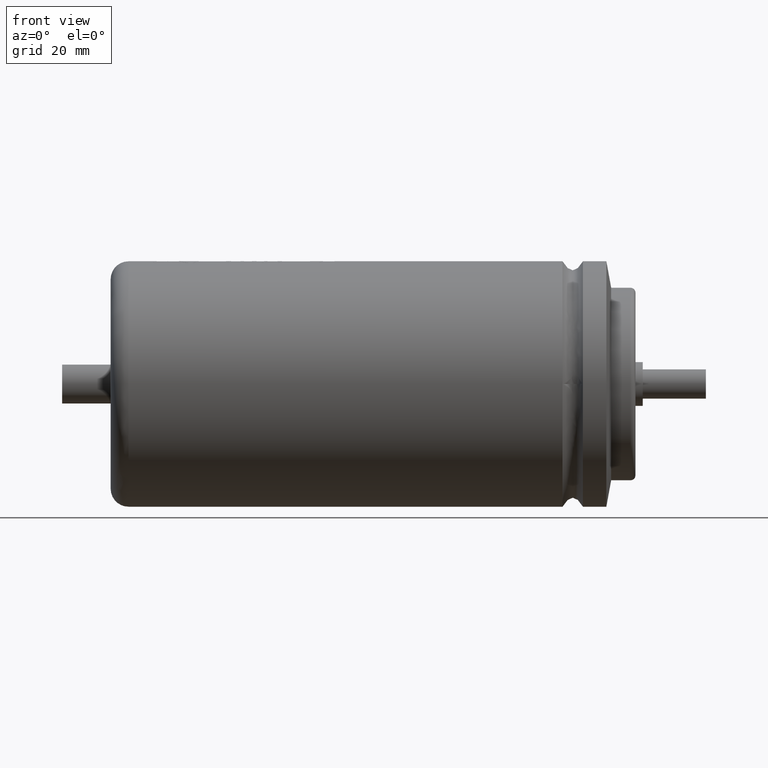
[diagram: clean part render]
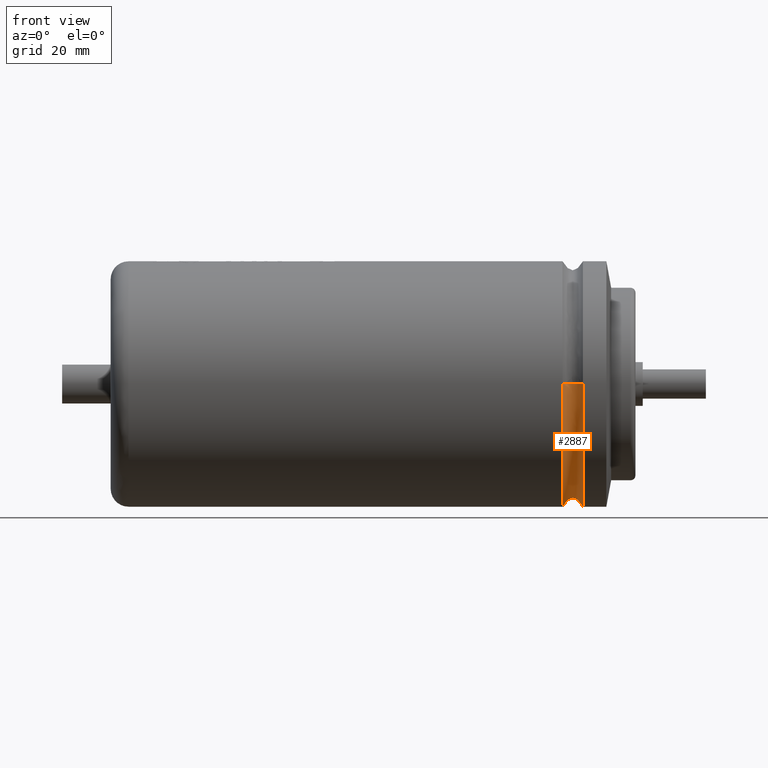
[diagram: same view with one face highlighted and labeled with its STEP entity id]
A machine part, front view. The second image highlights one B-rep face of the part: STEP entity #2887.
In plain terms, the highlighted face is a freeform B-spline surface patch.
Its self-contained STEP definition (entity closure, byte-faithful):
#46 = DIRECTION ( 'NONE',  ( 0.0000000000000000000, 0.0000000000000000000, -1.000000000000000000 ) ) ;
#49 = B_SPLINE_CURVE_WITH_KNOTS ( 'NONE', 2,
 ( #2690, #1147, #3621 ),
 .UNSPECIFIED., .F., .F.,
 ( 3, 3 ),
 ( 0.0000000000000000000, 1.000000000000000000 ),
 .UNSPECIFIED. ) ;
#65 = EDGE_CURVE ( 'NONE', #2632, #2107, #49, .T. ) ;
#70 = CARTESIAN_POINT ( 'NONE',  ( 97.18874000000001000, -25.25000000000000700, -50.49999999999999300 ) ) ;
#74 = DIRECTION ( 'NONE',  ( 0.0000000000000000000, 0.0000000000000000000, -1.000000000000000000 ) ) ;
#217 =( BOUNDED_SURFACE ( )  B_SPLINE_SURFACE ( 2, 3, ( 
 ( #3956, #3349, #1168, #848 ),
 ( #883, #2872, #1677, #1163 ),
 ( #3572, #70, #1830, #963 ) ),
 .UNSPECIFIED., .F., .F., .T. ) 
 B_SPLINE_SURFACE_WITH_KNOTS ( ( 3, 3 ),
 ( 4, 4 ),
 ( 0.0000000000000000000, 1.000000000000000000 ),
 ( 0.0000000000000000000, 1.000000000000000000 ),
 .UNSPECIFIED. ) 
 GEOMETRIC_REPRESENTATION_ITEM ( )  RATIONAL_B_SPLINE_SURFACE ( (
 ( 1.000000000000000000, 0.3333333333333334300, 0.3333333333333334300, 1.000000000000000000),
 ( 1.000000000000000000, 0.3333333333333334300, 0.3333333333333334300, 1.000000000000000000),
 ( 1.000000000000000000, 0.3333333333333334300, 0.3333333333333334300, 1.000000000000000000) ) ) 
 REPRESENTATION_ITEM ( '' )  SURFACE ( )  );
#224 = CIRCLE ( 'NONE', #2826, 25.25000000000000000 ) ;
#238 = CARTESIAN_POINT ( 'NONE',  ( 92.99663999999998500, 0.0000000000000000000, 0.0000000000000000000 ) ) ;
#240 = ORIENTED_EDGE ( 'NONE', *, *, #1224, .F. ) ;
#279 = VERTEX_POINT ( 'NONE', #428 ) ;
#369 = DIRECTION ( 'NONE',  ( 1.000000000000000000, -0.0000000000000000000, -0.0000000000000000000 ) ) ;
#428 = CARTESIAN_POINT ( 'NONE',  ( 97.18873999999999600, 3.092233167847066800E-015, -25.25000000000000000 ) ) ;
#455 = ORIENTED_EDGE ( 'NONE', *, *, #65, .T. ) ;
#525 = ORIENTED_EDGE ( 'NONE', *, *, #3550, .F. ) ;
#638 = CIRCLE ( 'NONE', #2170, 25.25000000000000000 ) ;
#700 = VERTEX_POINT ( 'NONE', #1898 ) ;
#805 = CARTESIAN_POINT ( 'NONE',  ( 95.09268999999999000, -21.55339999999999600, 2.639530232074256200E-015 ) ) ;
#848 = CARTESIAN_POINT ( 'NONE',  ( 92.99663999999998500, 25.25000000000000000, -6.184466335694133700E-015 ) ) ;
#883 = CARTESIAN_POINT ( 'NONE',  ( 95.09268999999999000, -21.55339999999999600, 2.639530232074256200E-015 ) ) ;
#955 = EDGE_CURVE ( 'NONE', #279, #2107, #224, .T. ) ;
#963 = CARTESIAN_POINT ( 'NONE',  ( 97.18873999999999600, 25.25000000000000000, -6.184466335694133700E-015 ) ) ;
#1086 = EDGE_CURVE ( 'NONE', #3762, #700, #638, .T. ) ;
#1147 = CARTESIAN_POINT ( 'NONE',  ( 95.09268999999999000, 21.55339999999999600, 0.0000000000000000000 ) ) ;
#1162 = ORIENTED_EDGE ( 'NONE', *, *, #2352, .T. ) ;
#1163 = CARTESIAN_POINT ( 'NONE',  ( 95.09268999999999000, 21.55339999999999600, -5.279060464148512400E-015 ) ) ;
#1168 = CARTESIAN_POINT ( 'NONE',  ( 92.99663999999999900, 25.24999999999998600, -50.49999999999999300 ) ) ;
#1224 = EDGE_CURVE ( 'NONE', #3762, #3380, #3012, .T. ) ;
#1341 = ORIENTED_EDGE ( 'NONE', *, *, #1086, .T. ) ;
#1422 = CARTESIAN_POINT ( 'NONE',  ( 92.99663999999998500, 25.25000000000000000, 0.0000000000000000000 ) ) ;
#1477 = ORIENTED_EDGE ( 'NONE', *, *, #955, .F. ) ;
#1509 = CARTESIAN_POINT ( 'NONE',  ( 97.18873999999999600, -25.25000000000000000, 3.092233167847066800E-015 ) ) ;
#1586 = DIRECTION ( 'NONE',  ( 0.0000000000000000000, 0.0000000000000000000, -1.000000000000000000 ) ) ;
#1590 = FACE_OUTER_BOUND ( 'NONE', #3423, .T. ) ;
#1677 = CARTESIAN_POINT ( 'NONE',  ( 95.09268999999999000, 21.55339999999998900, -43.10679999999999300 ) ) ;
#1751 = DIRECTION ( 'NONE',  ( 0.0000000000000000000, 0.0000000000000000000, -1.000000000000000000 ) ) ;
#1765 = DIRECTION ( 'NONE',  ( 1.000000000000000000, -0.0000000000000000000, -0.0000000000000000000 ) ) ;
#1830 = CARTESIAN_POINT ( 'NONE',  ( 97.18874000000001000, 25.24999999999998600, -50.49999999999999300 ) ) ;
#1862 = CIRCLE ( 'NONE', #1907, 25.25000000000000000 ) ;
#1898 = CARTESIAN_POINT ( 'NONE',  ( 92.99663999999998500, 3.092233167847066800E-015, -25.25000000000000000 ) ) ;
#1907 = AXIS2_PLACEMENT_3D ( 'NONE', #238, #2413, #46 ) ;
#1949 = CARTESIAN_POINT ( 'NONE',  ( 97.18873999999999600, 0.0000000000000000000, 0.0000000000000000000 ) ) ;
#2107 = VERTEX_POINT ( 'NONE', #3151 ) ;
#2170 = AXIS2_PLACEMENT_3D ( 'NONE', #3472, #369, #1586 ) ;
#2352 = EDGE_CURVE ( 'NONE', #700, #2632, #1862, .T. ) ;
#2413 = DIRECTION ( 'NONE',  ( 1.000000000000000000, -0.0000000000000000000, -0.0000000000000000000 ) ) ;
#2612 = CARTESIAN_POINT ( 'NONE',  ( 92.99663999999998500, -25.25000000000000000, 3.092233167847066800E-015 ) ) ;
#2632 = VERTEX_POINT ( 'NONE', #1422 ) ;
#2669 = CARTESIAN_POINT ( 'NONE',  ( 92.99663999999998500, -25.25000000000000000, 3.092233167847066800E-015 ) ) ;
#2690 = CARTESIAN_POINT ( 'NONE',  ( 92.99663999999998500, 25.25000000000000000, 0.0000000000000000000 ) ) ;
#2693 = CARTESIAN_POINT ( 'NONE',  ( 97.18873999999999600, 0.0000000000000000000, 0.0000000000000000000 ) ) ;
#2826 = AXIS2_PLACEMENT_3D ( 'NONE', #2693, #1765, #1751 ) ;
#2845 = CIRCLE ( 'NONE', #3308, 25.25000000000000000 ) ;
#2872 = CARTESIAN_POINT ( 'NONE',  ( 95.09268999999999000, -21.55340000000000300, -43.10679999999999300 ) ) ;
#2887 = ADVANCED_FACE ( 'NONE', ( #1590 ), #217, .F. ) ;
#3012 = B_SPLINE_CURVE_WITH_KNOTS ( 'NONE', 2,
 ( #2669, #805, #3630 ),
 .UNSPECIFIED., .F., .F.,
 ( 3, 3 ),
 ( 0.0000000000000000000, 1.000000000000000000 ),
 .UNSPECIFIED. ) ;
#3151 = CARTESIAN_POINT ( 'NONE',  ( 97.18873999999999600, 25.25000000000000000, 0.0000000000000000000 ) ) ;
#3308 = AXIS2_PLACEMENT_3D ( 'NONE', #1949, #3498, #74 ) ;
#3349 = CARTESIAN_POINT ( 'NONE',  ( 92.99663999999999900, -25.25000000000000700, -50.49999999999999300 ) ) ;
#3380 = VERTEX_POINT ( 'NONE', #1509 ) ;
#3423 = EDGE_LOOP ( 'NONE', ( #240, #1341, #1162, #455, #1477, #525 ) ) ;
#3472 = CARTESIAN_POINT ( 'NONE',  ( 92.99663999999998500, 0.0000000000000000000, 0.0000000000000000000 ) ) ;
#3498 = DIRECTION ( 'NONE',  ( 1.000000000000000000, -0.0000000000000000000, -0.0000000000000000000 ) ) ;
#3550 = EDGE_CURVE ( 'NONE', #3380, #279, #2845, .T. ) ;
#3572 = CARTESIAN_POINT ( 'NONE',  ( 97.18873999999999600, -25.25000000000000000, 3.092233167847066800E-015 ) ) ;
#3621 = CARTESIAN_POINT ( 'NONE',  ( 97.18873999999999600, 25.25000000000000000, 0.0000000000000000000 ) ) ;
#3630 = CARTESIAN_POINT ( 'NONE',  ( 97.18873999999999600, -25.25000000000000000, 3.092233167847066800E-015 ) ) ;
#3762 = VERTEX_POINT ( 'NONE', #2612 ) ;
#3956 = CARTESIAN_POINT ( 'NONE',  ( 92.99663999999998500, -25.25000000000000000, 3.092233167847066800E-015 ) ) ;